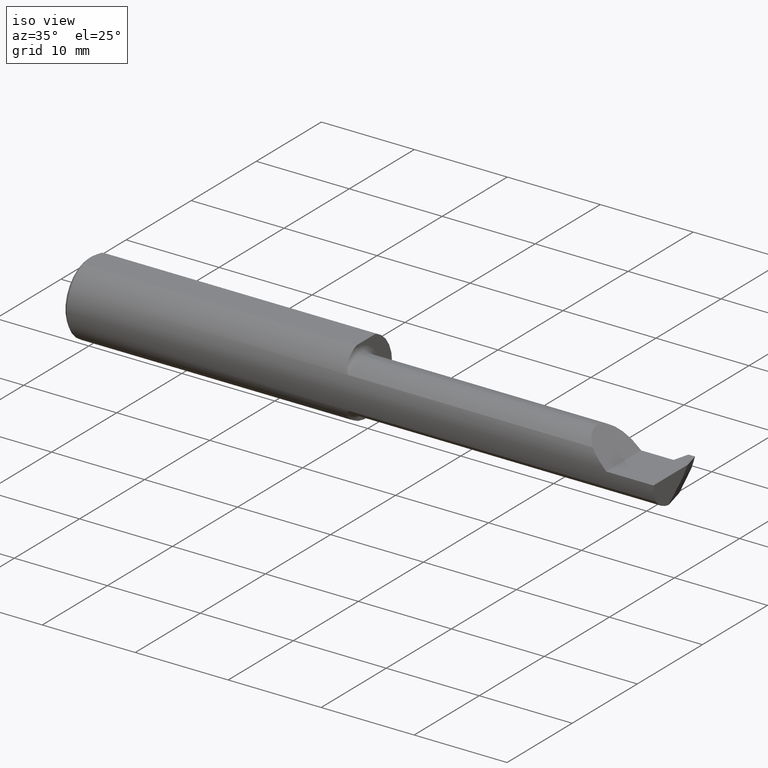
[diagram: clean part render]
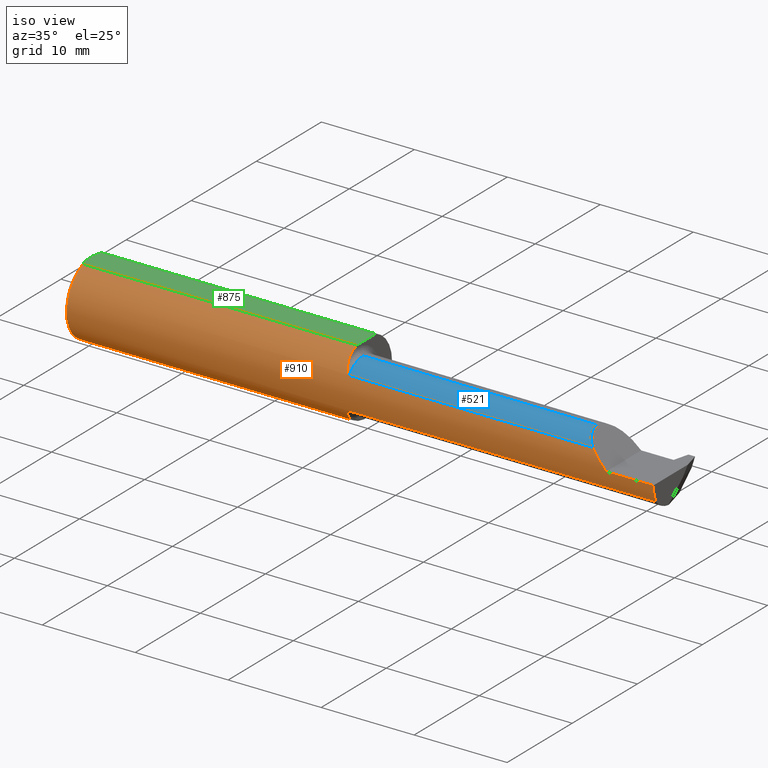
[diagram: same view with three faces highlighted in distinct colors, each labeled with its STEP entity id]
A machine part, iso view with three faces highlighted in distinct colors.
Their STEP definitions:

[orange] entity #910 — the highlighted cylindrical surface (partial cylindrical patch) has radius 3.9649 mm, axis along (-1, -0, -0).
#6 = CARTESIAN_POINT ( 'NONE',  ( 1.187605359673461258, -0.1337809426577717675, 0.08051774082737322979 ) ) ;
#9 = ORIENTED_EDGE ( 'NONE', *, *, #587, .F. ) ;
#12 = CARTESIAN_POINT ( 'NONE',  ( 2.500000000000000000, -0.1404253234750461043, -0.06817579135535321855 ) ) ;
#28 = CARTESIAN_POINT ( 'NONE',  ( 1.175000000000000266, 0.000000000000000000, 0.000000000000000000 ) ) ;
#33 = CARTESIAN_POINT ( 'NONE',  ( 2.500000000000000000, 0.05756040305626777126, 0.1450999999999999790 ) ) ;
#34 = DIRECTION ( 'NONE',  ( -1.000000000000000000, -0.000000000000000000, -0.000000000000000000 ) ) ;
#50 = VERTEX_POINT ( 'NONE', #222 ) ;
#60 = EDGE_CURVE ( 'NONE', #844, #255, #791, .T. ) ;
#61 = CARTESIAN_POINT ( 'NONE',  ( 1.175000000000000266, 0.000000000000000000, 0.000000000000000000 ) ) ;
#65 = VECTOR ( 'NONE', #461, 39.37007874015748143 ) ;
#77 = CARTESIAN_POINT ( 'NONE',  ( 1.189166370965441644, -0.1355737491029500308, 0.07744673639403802656 ) ) ;
#80 = AXIS2_PLACEMENT_3D ( 'NONE', #670, #381, #166 ) ;
#85 = ORIENTED_EDGE ( 'NONE', *, *, #230, .T. ) ;
#86 = CIRCLE ( 'NONE', #653, 0.1560999999999999888 ) ;
#89 = VERTEX_POINT ( 'NONE', #137 ) ;
#94 = VECTOR ( 'NONE', #584, 39.37007874015748143 ) ;
#104 = CARTESIAN_POINT ( 'NONE',  ( 1.189206631919842438, -0.1356135290907077295, -0.07737645377574924044 ) ) ;
#113 = DIRECTION ( 'NONE',  ( 1.000000000000000000, -0.000000000000000000, -0.000000000000000000 ) ) ;
#118 = B_SPLINE_CURVE_WITH_KNOTS ( 'NONE', 3,
 ( #214, #780, #912, #374, #514, #77, #6, #283, #288, #503, #643, #851, #784, #632 ),
 .UNSPECIFIED., .F., .F.,
 ( 4, 2, 2, 2, 2, 2, 4 ),
 ( 0.000000000000000000, 0.0001496528642217798968, 0.0002993057284435597936, 0.0005986114568871139493, 0.001197222913774225513, 0.001795834370661337186, 0.002394445827548448424 ),
 .UNSPECIFIED. ) ;
#136 = CARTESIAN_POINT ( 'NONE',  ( 2.300000000000000266, -0.1560999999999999888, -3.918740332231607202E-17 ) ) ;
#137 = CARTESIAN_POINT ( 'NONE',  ( 1.175000000000000266, -0.08381719038816995426, 0.1316886046529207599 ) ) ;
#147 = DIRECTION ( 'NONE',  ( 0.000000000000000000, 0.000000000000000000, -1.000000000000000000 ) ) ;
#150 = CIRCLE ( 'NONE', #708, 0.1560999999999999888 ) ;
#162 = CARTESIAN_POINT ( 'NONE',  ( 1.176534083241760564, -0.1085804411166635258, -0.1131817073037791888 ) ) ;
#166 = DIRECTION ( 'NONE',  ( 0.000000000000000000, 0.000000000000000000, 1.000000000000000000 ) ) ;
#181 = CARTESIAN_POINT ( 'NONE',  ( 1.198017170444488855, -0.1404253234750461043, -0.06817579135535316304 ) ) ;
#182 = VERTEX_POINT ( 'NONE', #852 ) ;
#203 = EDGE_CURVE ( 'NONE', #868, #844, #655, .T. ) ;
#205 = LINE ( 'NONE', #268, #611 ) ;
#213 = EDGE_CURVE ( 'NONE', #271, #592, #835, .T. ) ;
#214 = CARTESIAN_POINT ( 'NONE',  ( 1.200000000000000178, -0.1404253234750461321, 0.06817579135535316304 ) ) ;
#222 = CARTESIAN_POINT ( 'NONE',  ( 2.500000000000000000, -0.1561000000000000165, -3.918740332231607202E-17 ) ) ;
#226 = B_SPLINE_CURVE_WITH_KNOTS ( 'NONE', 3,
 ( #730, #788, #162, #596, #796, #662, #104, #392, #310, #867, #181, #528 ),
 .UNSPECIFIED., .F., .F.,
 ( 4, 2, 2, 2, 2, 4 ),
 ( 0.000000000000000000, 0.001172760684278181115, 0.001759141026417271672, 0.002052331197486818685, 0.002198926283021592626, 0.002345521368556367000 ),
 .UNSPECIFIED. ) ;
#230 = EDGE_CURVE ( 'NONE', #385, #592, #226, .T. ) ;
#237 = CARTESIAN_POINT ( 'NONE',  ( 1.175000000000000266, 0.05756040305626777126, 0.1450999999999999790 ) ) ;
#241 = FACE_OUTER_BOUND ( 'NONE', #338, .T. ) ;
#255 = VERTEX_POINT ( 'NONE', #878 ) ;
#257 = CARTESIAN_POINT ( 'NONE',  ( 1.175000000000000266, -0.05756040305626777820, 0.1450999999999999790 ) ) ;
#268 = CARTESIAN_POINT ( 'NONE',  ( 2.500000000000000000, -0.1560999999999999888, -3.918740332231607202E-17 ) ) ;
#271 = VERTEX_POINT ( 'NONE', #12 ) ;
#280 = ORIENTED_EDGE ( 'NONE', *, *, #757, .F. ) ;
#281 = EDGE_CURVE ( 'NONE', #385, #319, #86, .T. ) ;
#283 = CARTESIAN_POINT ( 'NONE',  ( 1.183416808568586331, -0.1279360967279930261, 0.08973580099040204261 ) ) ;
#284 = CARTESIAN_POINT ( 'NONE',  ( 2.500000000000000000, -0.05756040305626777126, 0.1450999999999999790 ) ) ;
#288 = CARTESIAN_POINT ( 'NONE',  ( 1.181414747612839378, -0.1234875550582431036, 0.09578598333246281238 ) ) ;
#289 = AXIS2_PLACEMENT_3D ( 'NONE', #61, #355, #907 ) ;
#291 = ORIENTED_EDGE ( 'NONE', *, *, #60, .T. ) ;
#294 = DIRECTION ( 'NONE',  ( 1.000000000000000000, 0.000000000000000000, 0.000000000000000000 ) ) ;
#305 = LINE ( 'NONE', #661, #94 ) ;
#306 = CARTESIAN_POINT ( 'NONE',  ( 1.804999999999999938, -0.1404253234750461321, -0.06817579135535316304 ) ) ;
#310 = CARTESIAN_POINT ( 'NONE',  ( 1.193429166325216562, -0.1387203257045916682, -0.07159402063229233781 ) ) ;
#318 = VECTOR ( 'NONE', #34, 39.37007874015748143 ) ;
#319 = VERTEX_POINT ( 'NONE', #237 ) ;
#321 = CYLINDRICAL_SURFACE ( 'NONE', #80, 0.1560999999999999888 ) ;
#324 = ORIENTED_EDGE ( 'NONE', *, *, #281, .F. ) ;
#338 = EDGE_LOOP ( 'NONE', ( #697, #905, #879, #431, #280, #353, #9, #345, #291, #893, #574, #324, #85 ) ) ;
#345 = ORIENTED_EDGE ( 'NONE', *, *, #203, .T. ) ;
#353 = ORIENTED_EDGE ( 'NONE', *, *, #576, .T. ) ;
#355 = DIRECTION ( 'NONE',  ( 1.000000000000000000, 0.000000000000000000, 0.000000000000000000 ) ) ;
#357 = CARTESIAN_POINT ( 'NONE',  ( 1.200000000000000178, -0.1404253234750461321, -0.06817579135535316304 ) ) ;
#362 =( BOUNDED_CURVE ( )  B_SPLINE_CURVE ( 3, ( #136, #839, #768, #636 ),
 .UNSPECIFIED., .F., .T. ) 
 B_SPLINE_CURVE_WITH_KNOTS ( ( 4, 4 ),
 ( 4.712388980384687898, 5.164365393897303314 ),
 .UNSPECIFIED. ) 
 CURVE ( )  GEOMETRIC_REPRESENTATION_ITEM ( )  RATIONAL_B_SPLINE_CURVE ( ( 1.000000000000000000, 0.9830487706143840043, 0.9830487706143840043, 1.000000000000000000 ) ) 
 REPRESENTATION_ITEM ( '' )  );
#368 = CARTESIAN_POINT ( 'NONE',  ( 2.500000000000000000, 0.000000000000000000, 0.000000000000000000 ) ) ;
#372 = EDGE_CURVE ( 'NONE', #255, #841, #150, .T. ) ;
#373 = EDGE_CURVE ( 'NONE', #50, #586, #205, .T. ) ;
#374 = CARTESIAN_POINT ( 'NONE',  ( 1.193392435750743052, -0.1386997847853259636, 0.07163397791871661813 ) ) ;
#381 = DIRECTION ( 'NONE',  ( -1.000000000000000000, -0.000000000000000000, -0.000000000000000000 ) ) ;
#385 = VERTEX_POINT ( 'NONE', #495 ) ;
#392 = CARTESIAN_POINT ( 'NONE',  ( 1.192279478956144612, -0.1379798729808596192, -0.07301711011826306219 ) ) ;
#412 = AXIS2_PLACEMENT_3D ( 'NONE', #368, #294, #147 ) ;
#429 = CARTESIAN_POINT ( 'NONE',  ( 2.300000000000000266, -0.1560999999999999888, -3.918740332231607202E-17 ) ) ;
#431 = ORIENTED_EDGE ( 'NONE', *, *, #599, .T. ) ;
#457 = LINE ( 'NONE', #33, #65 ) ;
#458 = CIRCLE ( 'NONE', #412, 0.1560999999999999888 ) ;
#461 = DIRECTION ( 'NONE',  ( 1.000000000000000000, 0.000000000000000000, 0.000000000000000000 ) ) ;
#478 = DIRECTION ( 'NONE',  ( 1.000000000000000000, 0.000000000000000000, 0.000000000000000000 ) ) ;
#493 = EDGE_CURVE ( 'NONE', #50, #271, #458, .T. ) ;
#495 = CARTESIAN_POINT ( 'NONE',  ( 1.175000000000000266, -0.08381719038816995426, -0.1316886046529207599 ) ) ;
#500 = AXIS2_PLACEMENT_3D ( 'NONE', #847, #573, #511 ) ;
#503 = CARTESIAN_POINT ( 'NONE',  ( 1.178193910147386170, -0.1136745389711200788, 0.1072484500910515504 ) ) ;
#511 = DIRECTION ( 'NONE',  ( 0.000000000000000000, 0.000000000000000000, -1.000000000000000000 ) ) ;
#514 = CARTESIAN_POINT ( 'NONE',  ( 1.192237837478429041, -0.1379520625079433127, 0.07306979920448578025 ) ) ;
#528 = CARTESIAN_POINT ( 'NONE',  ( 1.200000000000000178, -0.1404253234750461321, -0.06817579135535316304 ) ) ;
#533 = DIRECTION ( 'NONE',  ( 0.000000000000000000, 0.000000000000000000, -1.000000000000000000 ) ) ;
#552 = VERTEX_POINT ( 'NONE', #846 ) ;
#564 = DIRECTION ( 'NONE',  ( -1.000000000000000000, -0.000000000000000000, -0.000000000000000000 ) ) ;
#573 = DIRECTION ( 'NONE',  ( 1.000000000000000000, -0.000000000000000000, -0.000000000000000000 ) ) ;
#574 = ORIENTED_EDGE ( 'NONE', *, *, #715, .T. ) ;
#576 = EDGE_CURVE ( 'NONE', #182, #89, #118, .T. ) ;
#584 = DIRECTION ( 'NONE',  ( 1.000000000000000000, 0.000000000000000000, 0.000000000000000000 ) ) ;
#586 = VERTEX_POINT ( 'NONE', #429 ) ;
#587 = EDGE_CURVE ( 'NONE', #868, #89, #721, .T. ) ;
#592 = VERTEX_POINT ( 'NONE', #357 ) ;
#596 = CARTESIAN_POINT ( 'NONE',  ( 1.181403200130684450, -0.1234706953780182331, -0.09581413073336603192 ) ) ;
#599 = EDGE_CURVE ( 'NONE', #586, #552, #362, .T. ) ;
#611 = VECTOR ( 'NONE', #898, 39.37007874015748143 ) ;
#632 = CARTESIAN_POINT ( 'NONE',  ( 1.175000000000000266, -0.08381719038816995426, 0.1316886046529207599 ) ) ;
#636 = CARTESIAN_POINT ( 'NONE',  ( 2.231824208644646479, -0.1404253234750460488, 0.06817579135535328794 ) ) ;
#643 = CARTESIAN_POINT ( 'NONE',  ( 1.177003144326046469, -0.1082360171314163122, 0.1127462171707190874 ) ) ;
#653 = AXIS2_PLACEMENT_3D ( 'NONE', #28, #478, #533 ) ;
#655 = LINE ( 'NONE', #284, #667 ) ;
#661 = CARTESIAN_POINT ( 'NONE',  ( 1.804999999999999938, -0.1404253234750461321, 0.06817579135535316304 ) ) ;
#662 = CARTESIAN_POINT ( 'NONE',  ( 1.187623797854641339, -0.1338035519503443516, -0.08048043396403950500 ) ) ;
#667 = VECTOR ( 'NONE', #564, 39.37007874015748143 ) ;
#670 = CARTESIAN_POINT ( 'NONE',  ( 2.500000000000000000, 0.000000000000000000, 0.000000000000000000 ) ) ;
#687 = CARTESIAN_POINT ( 'NONE',  ( 0.01499999999999970107, -0.05756040305626777126, 0.1450999999999999790 ) ) ;
#697 = ORIENTED_EDGE ( 'NONE', *, *, #213, .F. ) ;
#708 = AXIS2_PLACEMENT_3D ( 'NONE', #748, #113, #817 ) ;
#715 = EDGE_CURVE ( 'NONE', #841, #319, #457, .T. ) ;
#721 = CIRCLE ( 'NONE', #289, 0.1560999999999999888 ) ;
#730 = CARTESIAN_POINT ( 'NONE',  ( 1.175000000000000266, -0.08381719038816995426, -0.1316886046529207599 ) ) ;
#748 = CARTESIAN_POINT ( 'NONE',  ( 0.01499999999999970281, 0.000000000000000000, 0.000000000000000000 ) ) ;
#755 = CARTESIAN_POINT ( 'NONE',  ( 0.01499999999999970281, 0.05756040305626777126, 0.1450999999999999790 ) ) ;
#757 = EDGE_CURVE ( 'NONE', #182, #552, #305, .T. ) ;
#768 = CARTESIAN_POINT ( 'NONE',  ( 2.253162613644221768, -0.1507850122484572508, 0.04683738635577809617 ) ) ;
#780 = CARTESIAN_POINT ( 'NONE',  ( 1.198004332278162609, -0.1404253234750461599, 0.06817579135535317691 ) ) ;
#784 = CARTESIAN_POINT ( 'NONE',  ( 1.175000000000000266, -0.09039521068908670798, 0.1275018249281880955 ) ) ;
#788 = CARTESIAN_POINT ( 'NONE',  ( 1.175000000000000266, -0.09698794191859314018, -0.1233056819885771371 ) ) ;
#791 = CIRCLE ( 'NONE', #500, 0.1560999999999999888 ) ;
#796 = CARTESIAN_POINT ( 'NONE',  ( 1.183423283070734300, -0.1279513233426676500, -0.08971505958942789516 ) ) ;
#817 = DIRECTION ( 'NONE',  ( 0.000000000000000000, 0.000000000000000000, -1.000000000000000000 ) ) ;
#835 = LINE ( 'NONE', #306, #318 ) ;
#839 = CARTESIAN_POINT ( 'NONE',  ( 2.276279741160605941, -0.1561000000000000165, 0.02372025883939345506 ) ) ;
#841 = VERTEX_POINT ( 'NONE', #755 ) ;
#844 = VERTEX_POINT ( 'NONE', #687 ) ;
#846 = CARTESIAN_POINT ( 'NONE',  ( 2.231824208644646479, -0.1404253234750460488, 0.06817579135535328794 ) ) ;
#847 = CARTESIAN_POINT ( 'NONE',  ( 0.01499999999999970281, 0.000000000000000000, 0.000000000000000000 ) ) ;
#851 = CARTESIAN_POINT ( 'NONE',  ( 1.175408103372244772, -0.09658968664339809274, 0.1228705714355937950 ) ) ;
#852 = CARTESIAN_POINT ( 'NONE',  ( 1.200000000000000178, -0.1404253234750461321, 0.06817579135535316304 ) ) ;
#867 = CARTESIAN_POINT ( 'NONE',  ( 1.196255291801899601, -0.1399378351544087185, -0.06918406497295905011 ) ) ;
#868 = VERTEX_POINT ( 'NONE', #257 ) ;
#878 = CARTESIAN_POINT ( 'NONE',  ( 0.01499999999999970281, 0.000000000000000000, -0.1560999999999999888 ) ) ;
#879 = ORIENTED_EDGE ( 'NONE', *, *, #373, .T. ) ;
#893 = ORIENTED_EDGE ( 'NONE', *, *, #372, .T. ) ;
#898 = DIRECTION ( 'NONE',  ( -1.000000000000000000, -0.000000000000000000, -0.000000000000000000 ) ) ;
#905 = ORIENTED_EDGE ( 'NONE', *, *, #493, .F. ) ;
#907 = DIRECTION ( 'NONE',  ( 0.000000000000000000, 0.000000000000000000, -1.000000000000000000 ) ) ;
#910 = ADVANCED_FACE ( 'NONE', ( #241 ), #321, .T. ) ;
#912 = CARTESIAN_POINT ( 'NONE',  ( 1.196217203179352762, -0.1399260202903903350, 0.06920813490947563817 ) ) ;

[blue] entity #521 — the highlighted cylindrical surface (edge-blend (fillet) strip) has radius 2.794 mm, axis along (-1, -0, -0).
#43 = CARTESIAN_POINT ( 'NONE',  ( 2.189999999999999947, -0.08835990389925882371, 0.1100000000000000283 ) ) ;
#67 = CARTESIAN_POINT ( 'NONE',  ( 1.175000000000000266, -0.05409999999999999531, 0.000000000000000000 ) ) ;
#74 = ORIENTED_EDGE ( 'NONE', *, *, #190, .T. ) ;
#94 = VECTOR ( 'NONE', #584, 39.37007874015748143 ) ;
#182 = VERTEX_POINT ( 'NONE', #852 ) ;
#185 = CARTESIAN_POINT ( 'NONE',  ( 2.204937869678032847, -0.1191917229287704216, 0.09506213032196700330 ) ) ;
#190 = EDGE_CURVE ( 'NONE', #763, #616, #840, .T. ) ;
#229 = CARTESIAN_POINT ( 'NONE',  ( 1.175000000000000266, -0.05409999999999999531, 0.1100000000000000006 ) ) ;
#297 = DIRECTION ( 'NONE',  ( 0.000000000000000000, 0.000000000000000000, 1.000000000000000000 ) ) ;
#305 = LINE ( 'NONE', #661, #94 ) ;
#326 = CARTESIAN_POINT ( 'NONE',  ( 1.200000000000000178, -0.05409999999999999531, 0.1100000000000000006 ) ) ;
#333 = EDGE_CURVE ( 'NONE', #616, #182, #350, .T. ) ;
#350 = CIRCLE ( 'NONE', #849, 0.1100000000000000006 ) ;
#420 = DIRECTION ( 'NONE',  ( 1.000000000000000000, 0.000000000000000000, 0.000000000000000000 ) ) ;
#423 = EDGE_CURVE ( 'NONE', #763, #552, #671, .T. ) ;
#424 = CARTESIAN_POINT ( 'NONE',  ( 2.231824208644646479, -0.1404253234750460488, 0.06817579135535328794 ) ) ;
#448 = DIRECTION ( 'NONE',  ( -1.000000000000000000, -0.000000000000000000, -0.000000000000000000 ) ) ;
#460 = ORIENTED_EDGE ( 'NONE', *, *, #757, .T. ) ;
#463 = ORIENTED_EDGE ( 'NONE', *, *, #423, .F. ) ;
#491 = CARTESIAN_POINT ( 'NONE',  ( 2.189999999999999947, -0.05409999999999999531, 0.1100000000000000006 ) ) ;
#510 = CYLINDRICAL_SURFACE ( 'NONE', #779, 0.1100000000000000006 ) ;
#517 = CARTESIAN_POINT ( 'NONE',  ( 2.189999999999999947, -0.05409999999999999531, 0.1100000000000000006 ) ) ;
#521 = ADVANCED_FACE ( 'NONE', ( #699 ), #510, .T. ) ;
#524 = CARTESIAN_POINT ( 'NONE',  ( 1.200000000000000178, -0.05409999999999999531, 0.000000000000000000 ) ) ;
#552 = VERTEX_POINT ( 'NONE', #846 ) ;
#584 = DIRECTION ( 'NONE',  ( 1.000000000000000000, 0.000000000000000000, 0.000000000000000000 ) ) ;
#616 = VERTEX_POINT ( 'NONE', #326 ) ;
#661 = CARTESIAN_POINT ( 'NONE',  ( 1.804999999999999938, -0.1404253234750461321, 0.06817579135535316304 ) ) ;
#671 =( BOUNDED_CURVE ( )  B_SPLINE_CURVE ( 3, ( #491, #43, #185, #424 ),
 .UNSPECIFIED., .F., .T. ) 
 B_SPLINE_CURVE_WITH_KNOTS ( ( 4, 4 ),
 ( 0.000000000000000000, 0.9023340896873542905 ),
 .UNSPECIFIED. ) 
 CURVE ( )  GEOMETRIC_REPRESENTATION_ITEM ( )  RATIONAL_B_SPLINE_CURVE ( ( 1.000000000000000000, 0.9332925766550594915, 0.9332925766550594915, 1.000000000000000000 ) ) 
 REPRESENTATION_ITEM ( '' )  );
#675 = EDGE_LOOP ( 'NONE', ( #463, #74, #872, #460 ) ) ;
#699 = FACE_OUTER_BOUND ( 'NONE', #675, .T. ) ;
#710 = DIRECTION ( 'NONE',  ( -1.000000000000000000, -0.000000000000000000, -0.000000000000000000 ) ) ;
#757 = EDGE_CURVE ( 'NONE', #182, #552, #305, .T. ) ;
#763 = VERTEX_POINT ( 'NONE', #517 ) ;
#765 = DIRECTION ( 'NONE',  ( 0.000000000000000000, 0.000000000000000000, -1.000000000000000000 ) ) ;
#779 = AXIS2_PLACEMENT_3D ( 'NONE', #67, #448, #297 ) ;
#808 = VECTOR ( 'NONE', #710, 39.37007874015748143 ) ;
#840 = LINE ( 'NONE', #229, #808 ) ;
#846 = CARTESIAN_POINT ( 'NONE',  ( 2.231824208644646479, -0.1404253234750460488, 0.06817579135535328794 ) ) ;
#849 = AXIS2_PLACEMENT_3D ( 'NONE', #524, #420, #765 ) ;
#852 = CARTESIAN_POINT ( 'NONE',  ( 1.200000000000000178, -0.1404253234750461321, 0.06817579135535316304 ) ) ;
#872 = ORIENTED_EDGE ( 'NONE', *, *, #333, .T. ) ;

[green] entity #875 — the highlighted planar face has unit normal (-0, 0, -1).
#33 = CARTESIAN_POINT ( 'NONE',  ( 2.500000000000000000, 0.05756040305626777126, 0.1450999999999999790 ) ) ;
#65 = VECTOR ( 'NONE', #461, 39.37007874015748143 ) ;
#81 = CARTESIAN_POINT ( 'NONE',  ( 0.008847869984959717479, -0.03896939155709343294, 0.1450999999999999512 ) ) ;
#96 = CARTESIAN_POINT ( 'NONE',  ( 0.003999999999997044114, 0.009886684785571414960, 0.1450999999999999512 ) ) ;
#116 = DIRECTION ( 'NONE',  ( -0.000000000000000000, 0.000000000000000000, -1.000000000000000000 ) ) ;
#132 = LINE ( 'NONE', #544, #335 ) ;
#167 = CARTESIAN_POINT ( 'NONE',  ( 0.005042865002153306721, -0.01979865541750971611, 0.1451000000000000068 ) ) ;
#169 = ORIENTED_EDGE ( 'NONE', *, *, #228, .T. ) ;
#203 = EDGE_CURVE ( 'NONE', #868, #844, #655, .T. ) ;
#228 = EDGE_CURVE ( 'NONE', #841, #682, #695, .T. ) ;
#233 = CARTESIAN_POINT ( 'NONE',  ( 0.003999999999999595893, 1.377970445471898428E-17, 0.1450999999999999790 ) ) ;
#237 = CARTESIAN_POINT ( 'NONE',  ( 1.175000000000000266, 0.05756040305626777126, 0.1450999999999999790 ) ) ;
#246 = ORIENTED_EDGE ( 'NONE', *, *, #736, .T. ) ;
#247 = DIRECTION ( 'NONE',  ( -1.000000000000000000, 0.000000000000000000, 0.000000000000000000 ) ) ;
#257 = CARTESIAN_POINT ( 'NONE',  ( 1.175000000000000266, -0.05756040305626777820, 0.1450999999999999790 ) ) ;
#284 = CARTESIAN_POINT ( 'NONE',  ( 2.500000000000000000, -0.05756040305626777126, 0.1450999999999999790 ) ) ;
#317 = CARTESIAN_POINT ( 'NONE',  ( 0.008799784310863792772, 0.03878477980766483618, 0.1451000000000000068 ) ) ;
#319 = VERTEX_POINT ( 'NONE', #237 ) ;
#335 = VECTOR ( 'NONE', #414, 39.37007874015748143 ) ;
#354 = ORIENTED_EDGE ( 'NONE', *, *, #451, .F. ) ;
#377 = CARTESIAN_POINT ( 'NONE',  ( 0.01499999999999970107, -0.05756040305626777126, 0.1450999999999999790 ) ) ;
#398 = CARTESIAN_POINT ( 'NONE',  ( 0.005017455651907636906, 0.01961184984831247299, 0.1450999999999999790 ) ) ;
#399 = ORIENTED_EDGE ( 'NONE', *, *, #715, .F. ) ;
#414 = DIRECTION ( 'NONE',  ( 0.000000000000000000, -1.000000000000000000, 0.000000000000000000 ) ) ;
#451 = EDGE_CURVE ( 'NONE', #319, #868, #132, .T. ) ;
#452 = CARTESIAN_POINT ( 'NONE',  ( 0.003999999999999595893, 1.377970445471898428E-17, 0.1450999999999999790 ) ) ;
#456 = AXIS2_PLACEMENT_3D ( 'NONE', #812, #116, #247 ) ;
#457 = LINE ( 'NONE', #33, #65 ) ;
#461 = DIRECTION ( 'NONE',  ( 1.000000000000000000, 0.000000000000000000, 0.000000000000000000 ) ) ;
#469 = CARTESIAN_POINT ( 'NONE',  ( 0.003999999999999595893, 1.377970445471898428E-17, 0.1450999999999999790 ) ) ;
#540 = PLANE ( 'NONE',  #456 ) ;
#544 = CARTESIAN_POINT ( 'NONE',  ( 1.175000000000000266, 0.1000000000000000056, 0.1450999999999999790 ) ) ;
#558 = B_SPLINE_CURVE_WITH_KNOTS ( 'NONE', 3,
 ( #452, #718, #167, #81, #795, #377 ),
 .UNSPECIFIED., .F., .F.,
 ( 4, 2, 4 ),
 ( 0.004431269906162800011, 0.005173847132308577804, 0.005916424358454355596 ),
 .UNSPECIFIED. ) ;
#564 = DIRECTION ( 'NONE',  ( -1.000000000000000000, -0.000000000000000000, -0.000000000000000000 ) ) ;
#655 = LINE ( 'NONE', #284, #667 ) ;
#667 = VECTOR ( 'NONE', #564, 39.37007874015748143 ) ;
#674 = CARTESIAN_POINT ( 'NONE',  ( 0.01499999999999970281, 0.05756040305626777126, 0.1450999999999999790 ) ) ;
#682 = VERTEX_POINT ( 'NONE', #469 ) ;
#687 = CARTESIAN_POINT ( 'NONE',  ( 0.01499999999999970107, -0.05756040305626777126, 0.1450999999999999790 ) ) ;
#695 = B_SPLINE_CURVE_WITH_KNOTS ( 'NONE', 3,
 ( #674, #871, #317, #398, #96, #233 ),
 .UNSPECIFIED., .F., .F.,
 ( 4, 2, 4 ),
 ( 0.002945485300212740808, 0.003688377603187770627, 0.004431269906162800011 ),
 .UNSPECIFIED. ) ;
#715 = EDGE_CURVE ( 'NONE', #841, #319, #457, .T. ) ;
#718 = CARTESIAN_POINT ( 'NONE',  ( 0.003999999999996986001, -0.009882491626910055310, 0.1450999999999999790 ) ) ;
#736 = EDGE_CURVE ( 'NONE', #682, #844, #558, .T. ) ;
#750 = FACE_OUTER_BOUND ( 'NONE', #901, .T. ) ;
#755 = CARTESIAN_POINT ( 'NONE',  ( 0.01499999999999970281, 0.05756040305626777126, 0.1450999999999999790 ) ) ;
#783 = ORIENTED_EDGE ( 'NONE', *, *, #203, .F. ) ;
#795 = CARTESIAN_POINT ( 'NONE',  ( 0.01160171645209438947, -0.04834448319362431162, 0.1450999999999999790 ) ) ;
#812 = CARTESIAN_POINT ( 'NONE',  ( 0.000000000000000000, 0.1000000000000000056, 0.1450999999999999790 ) ) ;
#841 = VERTEX_POINT ( 'NONE', #755 ) ;
#844 = VERTEX_POINT ( 'NONE', #687 ) ;
#868 = VERTEX_POINT ( 'NONE', #257 ) ;
#871 = CARTESIAN_POINT ( 'NONE',  ( 0.01157928343552837129, 0.04828364633877424428, 0.1451000000000000068 ) ) ;
#875 = ADVANCED_FACE ( 'NONE', ( #750 ), #540, .F. ) ;
#901 = EDGE_LOOP ( 'NONE', ( #354, #399, #169, #246, #783 ) ) ;